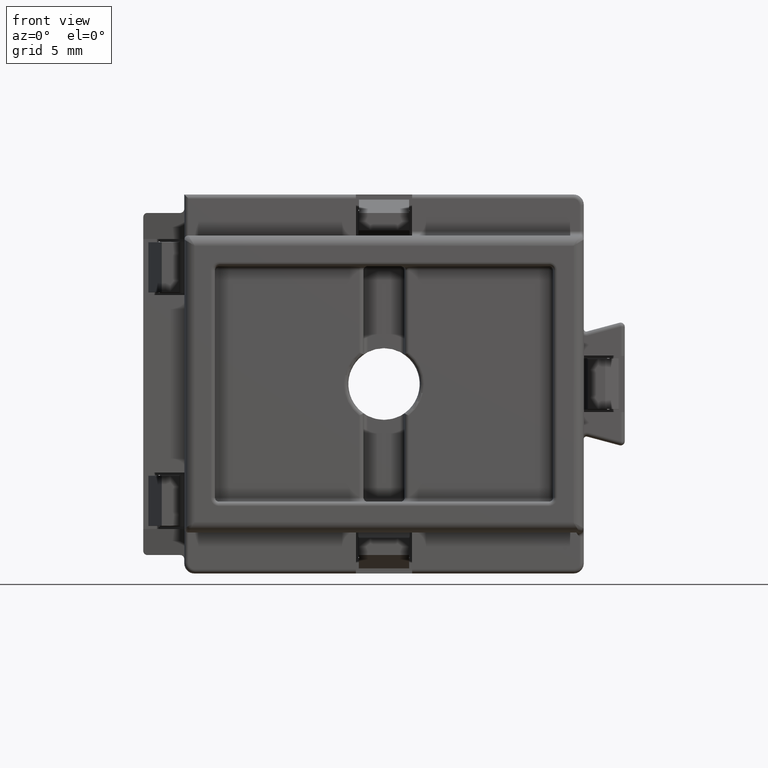
[diagram: clean part render]
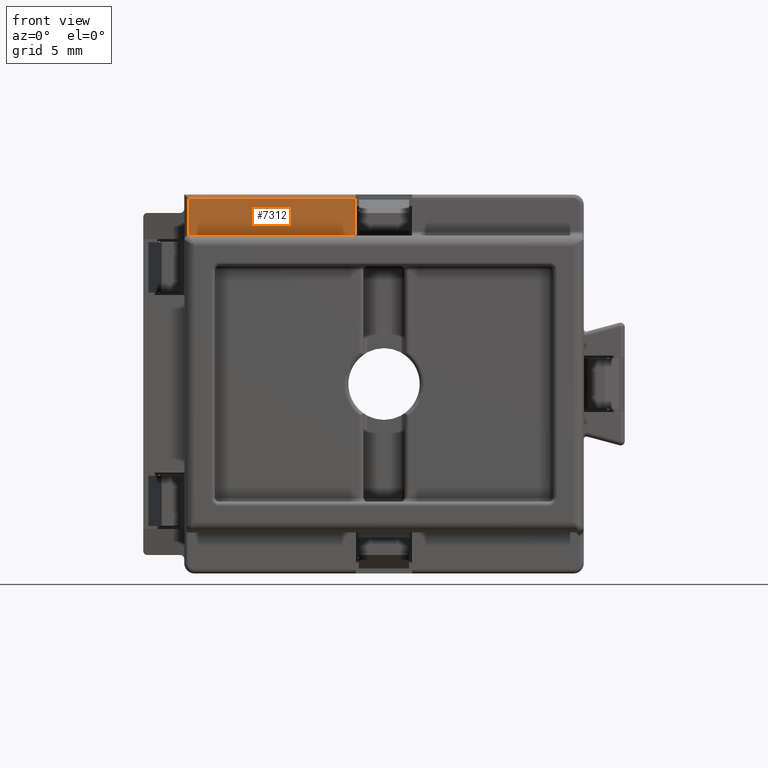
[diagram: same view with one face highlighted and labeled with its STEP entity id]
A machine part, front view. The second image highlights one B-rep face of the part: STEP entity #7312.
In plain terms, the highlighted planar face has unit normal (0, -1, 0).
Its self-contained STEP definition (entity closure, byte-faithful):
#2782 = VECTOR ( 'NONE', #26640, 1000.000000000000000 ) ;
#2794 = VECTOR ( 'NONE', #26692, 1000.000000000000000 ) ;
#2799 = VECTOR ( 'NONE', #26667, 1000.000000000000000 ) ;
#2821 = VECTOR ( 'NONE', #26666, 1000.000000000000000 ) ;
#4288 = EDGE_LOOP ( 'NONE', ( #4584, #4590, #4536, #4515 ) ) ;
#4515 = ORIENTED_EDGE ( 'NONE', *, *, #7650, .F. ) ;
#4536 = ORIENTED_EDGE ( 'NONE', *, *, #7657, .T. ) ;
#4584 = ORIENTED_EDGE ( 'NONE', *, *, #7660, .F. ) ;
#4590 = ORIENTED_EDGE ( 'NONE', *, *, #7655, .T. ) ;
#5242 = CARTESIAN_POINT ( 'NONE',  ( 7.631555369887840000, 28.14973753280830200, -1.122838019615116000 ) ) ;
#5255 = CARTESIAN_POINT ( 'NONE',  ( 7.631555369887840000, 28.14973753280830200, -2.922838019615115400 ) ) ;
#5701 = AXIS2_PLACEMENT_3D ( 'NONE', #30193, #30218, #30231 ) ;
#5755 = VERTEX_POINT ( 'NONE', #5242 ) ;
#5756 = VERTEX_POINT ( 'NONE', #5255 ) ;
#7312 = ADVANCED_FACE ( 'NONE', ( #30241 ), #30210, .T. ) ;
#7650 = EDGE_CURVE ( 'NONE', #5756, #21052, #26615, .T. ) ;
#7655 = EDGE_CURVE ( 'NONE', #5755, #21055, #26618, .T. ) ;
#7657 = EDGE_CURVE ( 'NONE', #21055, #21052, #26693, .T. ) ;
#7660 = EDGE_CURVE ( 'NONE', #5755, #5756, #26695, .T. ) ;
#10723 = CARTESIAN_POINT ( 'NONE',  ( -0.5434446301121630400, 28.14973753280830200, -1.122838019615116000 ) ) ;
#10769 = CARTESIAN_POINT ( 'NONE',  ( -0.5434446301121639300, 28.14973753280830200, -2.922838019615115400 ) ) ;
#21052 = VERTEX_POINT ( 'NONE', #10769 ) ;
#21055 = VERTEX_POINT ( 'NONE', #10723 ) ;
#26608 = CARTESIAN_POINT ( 'NONE',  ( 8.006555369887841800, 28.14973753280830200, -2.922838019615115400 ) ) ;
#26615 = LINE ( 'NONE', #26608, #2782 ) ;
#26618 = LINE ( 'NONE', #26620, #2821 ) ;
#26620 = CARTESIAN_POINT ( 'NONE',  ( 8.006555369887841800, 28.14973753280830200, -1.122838019615116000 ) ) ;
#26640 = DIRECTION ( 'NONE',  ( -1.000000000000000000, 0.0000000000000000000, 0.0000000000000000000 ) ) ;
#26653 = CARTESIAN_POINT ( 'NONE',  ( 7.631555369887840000, 28.14973753280830200, -19.67283801961509900 ) ) ;
#26666 = DIRECTION ( 'NONE',  ( -1.000000000000000000, -0.0000000000000000000, -0.0000000000000000000 ) ) ;
#26667 = DIRECTION ( 'NONE',  ( 0.0000000000000000000, 0.0000000000000000000, -1.000000000000000000 ) ) ;
#26686 = CARTESIAN_POINT ( 'NONE',  ( -0.5434446301121630400, 28.14973753280830200, -19.67283801961509900 ) ) ;
#26692 = DIRECTION ( 'NONE',  ( 0.0000000000000000000, 0.0000000000000000000, -1.000000000000000000 ) ) ;
#26693 = LINE ( 'NONE', #26686, #2799 ) ;
#26695 = LINE ( 'NONE', #26653, #2794 ) ;
#30193 = CARTESIAN_POINT ( 'NONE',  ( 8.006555369887841800, 28.14973753280830200, -19.67283801961509900 ) ) ;
#30210 = PLANE ( 'NONE',  #5701 ) ;
#30218 = DIRECTION ( 'NONE',  ( 0.0000000000000000000, -1.000000000000000000, 0.0000000000000000000 ) ) ;
#30231 = DIRECTION ( 'NONE',  ( 0.0000000000000000000, 0.0000000000000000000, -1.000000000000000000 ) ) ;
#30241 = FACE_OUTER_BOUND ( 'NONE', #4288, .T. ) ;